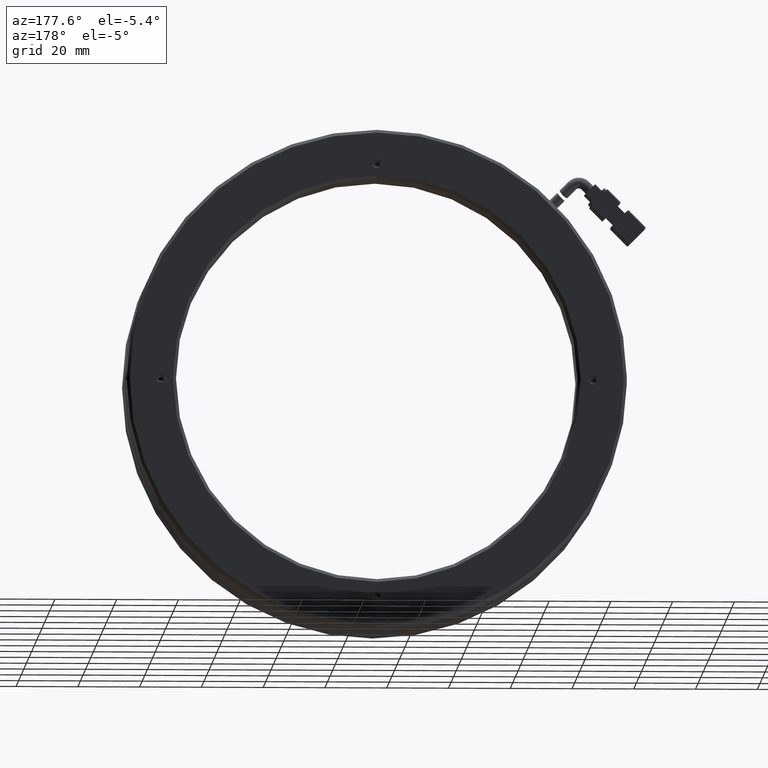
[diagram: clean part render]
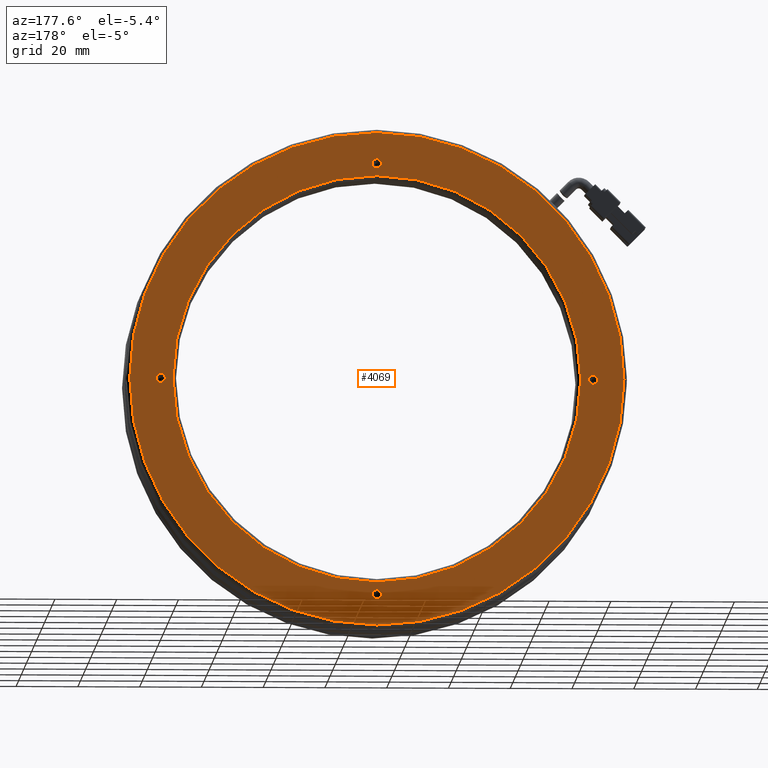
[diagram: same view with one face highlighted and labeled with its STEP entity id]
A machine part, auxiliary view. The second image highlights one B-rep face of the part: STEP entity #4069.
In plain terms, the highlighted planar face has unit normal (0, -1, 0).
Its self-contained STEP definition (entity closure, byte-faithful):
#13 = AXIS2_PLACEMENT_3D ( 'NONE', #1025, #8275, #2063 ) ;
#72 = CIRCLE ( 'NONE', #11975, 79.99999999999998600 ) ;
#88 = EDGE_CURVE ( 'NONE', #12713, #9354, #1240, .T. ) ;
#206 = CARTESIAN_POINT ( 'NONE',  ( 60.21497773311997300, 27.87111437184006100, 7.285131839178515600E-013 ) ) ;
#410 = EDGE_LOOP ( 'NONE', ( #12534, #4428 ) ) ;
#491 = FACE_BOUND ( 'NONE', #1636, .T. ) ;
#702 = CARTESIAN_POINT ( 'NONE',  ( -9.785022266880025300, 27.87111437184006100, 79.99999999999998600 ) ) ;
#819 = FACE_BOUND ( 'NONE', #5230, .T. ) ;
#945 = ORIENTED_EDGE ( 'NONE', *, *, #7086, .F. ) ;
#1025 = CARTESIAN_POINT ( 'NONE',  ( 60.21497773311997300, 27.87111437184006100, 7.285131839178515600E-013 ) ) ;
#1229 = DIRECTION ( 'NONE',  ( 0.0000000000000000000, 0.0000000000000000000, 1.000000000000000000 ) ) ;
#1240 = CIRCLE ( 'NONE', #9154, 1.500000000000001300 ) ;
#1544 = CARTESIAN_POINT ( 'NONE',  ( -9.785022266879552800, 27.87111437184006100, -68.50000000000000000 ) ) ;
#1636 = EDGE_LOOP ( 'NONE', ( #10581, #11882 ) ) ;
#1829 = VERTEX_POINT ( 'NONE', #2475 ) ;
#1971 = CIRCLE ( 'NONE', #13, 1.500000000000001300 ) ;
#2063 = DIRECTION ( 'NONE',  ( 0.0000000000000000000, 0.0000000000000000000, 1.000000000000000000 ) ) ;
#2069 = CARTESIAN_POINT ( 'NONE',  ( -79.78502226688004800, 27.87111437184006100, 1.499999999999761700 ) ) ;
#2079 = ORIENTED_EDGE ( 'NONE', *, *, #88, .F. ) ;
#2184 = CARTESIAN_POINT ( 'NONE',  ( -9.785022266880036000, 27.87111437184006100, -79.99999999999998600 ) ) ;
#2439 = CARTESIAN_POINT ( 'NONE',  ( -9.785022266879552800, 27.87111437184006100, -70.00000000000000000 ) ) ;
#2475 = CARTESIAN_POINT ( 'NONE',  ( -79.78502226688004800, 27.87111437184006100, -1.500000000000240900 ) ) ;
#2756 = CARTESIAN_POINT ( 'NONE',  ( -79.78502226688004800, 27.87111437184006100, -2.397057964798127900E-013 ) ) ;
#2927 = CIRCLE ( 'NONE', #4547, 1.500000000000001300 ) ;
#3045 = AXIS2_PLACEMENT_3D ( 'NONE', #2756, #9984, #3803 ) ;
#3106 = ORIENTED_EDGE ( 'NONE', *, *, #12419, .F. ) ;
#3260 = DIRECTION ( 'NONE',  ( 0.0000000000000000000, -1.000000000000000000, 0.0000000000000000000 ) ) ;
#3467 = DIRECTION ( 'NONE',  ( -0.0000000000000000000, 1.000000000000000000, 0.0000000000000000000 ) ) ;
#3505 = DIRECTION ( 'NONE',  ( 0.0000000000000000000, 0.0000000000000000000, 1.000000000000000000 ) ) ;
#3641 = DIRECTION ( 'NONE',  ( 0.0000000000000000000, -1.000000000000000000, 0.0000000000000000000 ) ) ;
#3803 = DIRECTION ( 'NONE',  ( 0.0000000000000000000, 0.0000000000000000000, 1.000000000000000000 ) ) ;
#4017 = VERTEX_POINT ( 'NONE', #4158 ) ;
#4069 = ADVANCED_FACE ( 'NONE', ( #11457, #491, #8738, #819, #5991, #11157 ), #11463, .F. ) ;
#4139 = DIRECTION ( 'NONE',  ( -0.0000000000000000000, 1.000000000000000000, -0.0000000000000000000 ) ) ;
#4158 = CARTESIAN_POINT ( 'NONE',  ( -9.785022266880027100, 27.87111437184006100, -66.00000000000001400 ) ) ;
#4420 = CARTESIAN_POINT ( 'NONE',  ( 60.21497773311997300, 27.87111437184006100, -1.499999999999272800 ) ) ;
#4428 = ORIENTED_EDGE ( 'NONE', *, *, #9212, .F. ) ;
#4541 = CIRCLE ( 'NONE', #3045, 1.500000000000001300 ) ;
#4547 = AXIS2_PLACEMENT_3D ( 'NONE', #2439, #9682, #3505 ) ;
#4750 = CARTESIAN_POINT ( 'NONE',  ( -9.785022266880036000, 27.87111437184006100, 0.0000000000000000000 ) ) ;
#4816 = DIRECTION ( 'NONE',  ( -0.0000000000000000000, 1.000000000000000000, -0.0000000000000000000 ) ) ;
#4861 = CIRCLE ( 'NONE', #5848, 1.500000000000001300 ) ;
#4980 = VERTEX_POINT ( 'NONE', #11470 ) ;
#5187 = AXIS2_PLACEMENT_3D ( 'NONE', #4750, #11962, #5798 ) ;
#5230 = EDGE_LOOP ( 'NONE', ( #8183, #3106 ) ) ;
#5314 = DIRECTION ( 'NONE',  ( -0.0000000000000000000, 1.000000000000000000, -0.0000000000000000000 ) ) ;
#5580 = VERTEX_POINT ( 'NONE', #702 ) ;
#5798 = DIRECTION ( 'NONE',  ( 0.0000000000000000000, 0.0000000000000000000, 1.000000000000000000 ) ) ;
#5848 = AXIS2_PLACEMENT_3D ( 'NONE', #11005, #4816, #12036 ) ;
#5903 = CARTESIAN_POINT ( 'NONE',  ( -9.785022266880036000, 27.87111437184006100, 0.0000000000000000000 ) ) ;
#5991 = FACE_BOUND ( 'NONE', #410, .T. ) ;
#6129 = AXIS2_PLACEMENT_3D ( 'NONE', #11492, #5314, #12541 ) ;
#6182 = CARTESIAN_POINT ( 'NONE',  ( 60.21497773311997300, 27.87111437184006100, 1.500000000000729900 ) ) ;
#6196 = ORIENTED_EDGE ( 'NONE', *, *, #10709, .F. ) ;
#6347 = EDGE_LOOP ( 'NONE', ( #2079, #945 ) ) ;
#6360 = VERTEX_POINT ( 'NONE', #1544 ) ;
#6507 = AXIS2_PLACEMENT_3D ( 'NONE', #10318, #4139, #11359 ) ;
#6530 = EDGE_CURVE ( 'NONE', #4980, #4017, #8051, .T. ) ;
#6655 = ORIENTED_EDGE ( 'NONE', *, *, #7685, .F. ) ;
#6945 = DIRECTION ( 'NONE',  ( 0.0000000000000000000, 0.0000000000000000000, -1.000000000000000000 ) ) ;
#7076 = CARTESIAN_POINT ( 'NONE',  ( -9.785022266880030600, 27.87111437184006100, 71.50000000000001400 ) ) ;
#7086 = EDGE_CURVE ( 'NONE', #9354, #12713, #11402, .T. ) ;
#7307 = EDGE_CURVE ( 'NONE', #4017, #4980, #11071, .T. ) ;
#7441 = DIRECTION ( 'NONE',  ( -0.0000000000000000000, 1.000000000000000000, -0.0000000000000000000 ) ) ;
#7450 = EDGE_CURVE ( 'NONE', #13318, #5580, #7520, .T. ) ;
#7520 = CIRCLE ( 'NONE', #12318, 79.99999999999998600 ) ;
#7685 = EDGE_CURVE ( 'NONE', #5580, #13318, #72, .T. ) ;
#8051 = CIRCLE ( 'NONE', #5187, 66.00000000000001400 ) ;
#8183 = ORIENTED_EDGE ( 'NONE', *, *, #13116, .F. ) ;
#8275 = DIRECTION ( 'NONE',  ( -0.0000000000000000000, 1.000000000000000000, -0.0000000000000000000 ) ) ;
#8280 = EDGE_CURVE ( 'NONE', #12959, #13268, #11024, .T. ) ;
#8300 = AXIS2_PLACEMENT_3D ( 'NONE', #9434, #3260, #10468 ) ;
#8566 = CARTESIAN_POINT ( 'NONE',  ( -9.785022266880030600, 27.87111437184006100, 70.00000000000000000 ) ) ;
#8738 = FACE_BOUND ( 'NONE', #6347, .T. ) ;
#9143 = AXIS2_PLACEMENT_3D ( 'NONE', #206, #7441, #1229 ) ;
#9154 = AXIS2_PLACEMENT_3D ( 'NONE', #8566, #9528, #9621 ) ;
#9212 = EDGE_CURVE ( 'NONE', #9731, #6360, #4861, .T. ) ;
#9273 = CARTESIAN_POINT ( 'NONE',  ( -9.785022266880030600, 27.87111437184006100, 68.50000000000000000 ) ) ;
#9354 = VERTEX_POINT ( 'NONE', #9273 ) ;
#9413 = EDGE_LOOP ( 'NONE', ( #6196, #12238 ) ) ;
#9434 = CARTESIAN_POINT ( 'NONE',  ( -90.78502226688003400, 27.87111437184006100, 0.0000000000000000000 ) ) ;
#9528 = DIRECTION ( 'NONE',  ( -0.0000000000000000000, 1.000000000000000000, -0.0000000000000000000 ) ) ;
#9621 = DIRECTION ( 'NONE',  ( 0.0000000000000000000, 0.0000000000000000000, 1.000000000000000000 ) ) ;
#9638 = CARTESIAN_POINT ( 'NONE',  ( -9.785022266880036000, 27.87111437184006100, 0.0000000000000000000 ) ) ;
#9682 = DIRECTION ( 'NONE',  ( -0.0000000000000000000, 1.000000000000000000, -0.0000000000000000000 ) ) ;
#9728 = EDGE_CURVE ( 'NONE', #6360, #9731, #2927, .T. ) ;
#9731 = VERTEX_POINT ( 'NONE', #12697 ) ;
#9827 = CARTESIAN_POINT ( 'NONE',  ( -9.785022266880036000, 27.87111437184006100, 0.0000000000000000000 ) ) ;
#9984 = DIRECTION ( 'NONE',  ( -0.0000000000000000000, 1.000000000000000000, -0.0000000000000000000 ) ) ;
#10318 = CARTESIAN_POINT ( 'NONE',  ( -9.785022266880030600, 27.87111437184006100, 70.00000000000000000 ) ) ;
#10468 = DIRECTION ( 'NONE',  ( 0.0000000000000000000, -0.0000000000000000000, -1.000000000000000000 ) ) ;
#10581 = ORIENTED_EDGE ( 'NONE', *, *, #6530, .F. ) ;
#10675 = DIRECTION ( 'NONE',  ( 0.0000000000000000000, 0.0000000000000000000, 1.000000000000000000 ) ) ;
#10709 = EDGE_CURVE ( 'NONE', #13268, #12959, #1971, .T. ) ;
#10849 = DIRECTION ( 'NONE',  ( 0.0000000000000000000, 0.0000000000000000000, -1.000000000000000000 ) ) ;
#11005 = CARTESIAN_POINT ( 'NONE',  ( -9.785022266879552800, 27.87111437184006100, -70.00000000000000000 ) ) ;
#11024 = CIRCLE ( 'NONE', #9143, 1.500000000000001300 ) ;
#11071 = CIRCLE ( 'NONE', #12731, 66.00000000000001400 ) ;
#11092 = EDGE_LOOP ( 'NONE', ( #11397, #6655 ) ) ;
#11157 = FACE_BOUND ( 'NONE', #9413, .T. ) ;
#11359 = DIRECTION ( 'NONE',  ( 0.0000000000000000000, 0.0000000000000000000, 1.000000000000000000 ) ) ;
#11397 = ORIENTED_EDGE ( 'NONE', *, *, #7450, .F. ) ;
#11402 = CIRCLE ( 'NONE', #6507, 1.500000000000001300 ) ;
#11457 = FACE_OUTER_BOUND ( 'NONE', #11092, .T. ) ;
#11463 = PLANE ( 'NONE',  #8300 ) ;
#11470 = CARTESIAN_POINT ( 'NONE',  ( -9.785022266880036000, 27.87111437184006100, 66.00000000000001400 ) ) ;
#11492 = CARTESIAN_POINT ( 'NONE',  ( -79.78502226688004800, 27.87111437184006100, -2.397057964798127900E-013 ) ) ;
#11882 = ORIENTED_EDGE ( 'NONE', *, *, #7307, .F. ) ;
#11962 = DIRECTION ( 'NONE',  ( -0.0000000000000000000, 1.000000000000000000, 0.0000000000000000000 ) ) ;
#11975 = AXIS2_PLACEMENT_3D ( 'NONE', #5903, #13115, #6945 ) ;
#12036 = DIRECTION ( 'NONE',  ( 0.0000000000000000000, 0.0000000000000000000, 1.000000000000000000 ) ) ;
#12238 = ORIENTED_EDGE ( 'NONE', *, *, #8280, .F. ) ;
#12318 = AXIS2_PLACEMENT_3D ( 'NONE', #9827, #3641, #10849 ) ;
#12322 = CIRCLE ( 'NONE', #6129, 1.500000000000001300 ) ;
#12419 = EDGE_CURVE ( 'NONE', #1829, #12832, #12322, .T. ) ;
#12534 = ORIENTED_EDGE ( 'NONE', *, *, #9728, .F. ) ;
#12541 = DIRECTION ( 'NONE',  ( 0.0000000000000000000, 0.0000000000000000000, 1.000000000000000000 ) ) ;
#12697 = CARTESIAN_POINT ( 'NONE',  ( -9.785022266879552800, 27.87111437184006100, -71.50000000000001400 ) ) ;
#12713 = VERTEX_POINT ( 'NONE', #7076 ) ;
#12731 = AXIS2_PLACEMENT_3D ( 'NONE', #9638, #3467, #10675 ) ;
#12832 = VERTEX_POINT ( 'NONE', #2069 ) ;
#12959 = VERTEX_POINT ( 'NONE', #4420 ) ;
#13115 = DIRECTION ( 'NONE',  ( 0.0000000000000000000, -1.000000000000000000, 0.0000000000000000000 ) ) ;
#13116 = EDGE_CURVE ( 'NONE', #12832, #1829, #4541, .T. ) ;
#13268 = VERTEX_POINT ( 'NONE', #6182 ) ;
#13318 = VERTEX_POINT ( 'NONE', #2184 ) ;